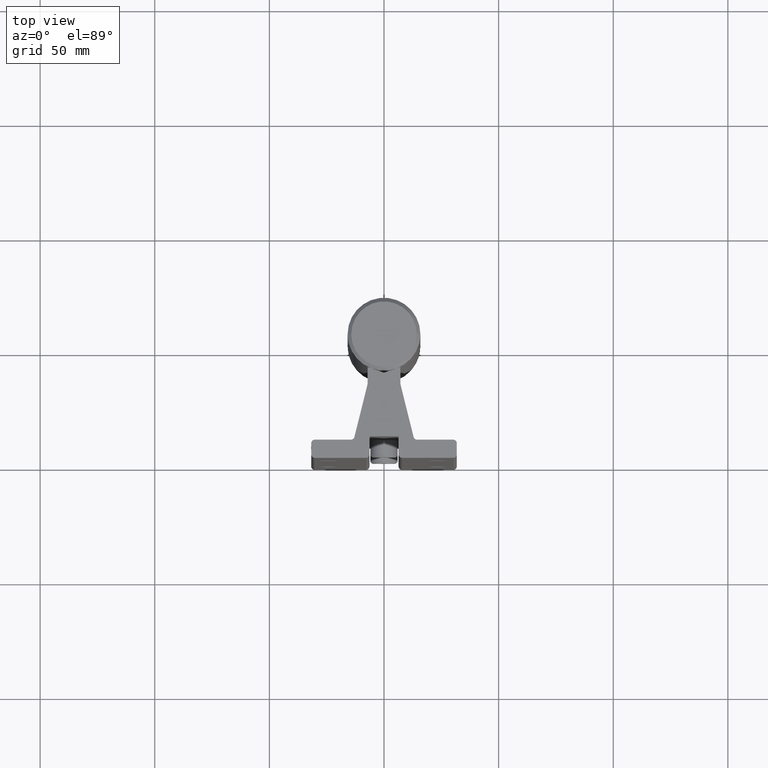
[diagram: clean part render]
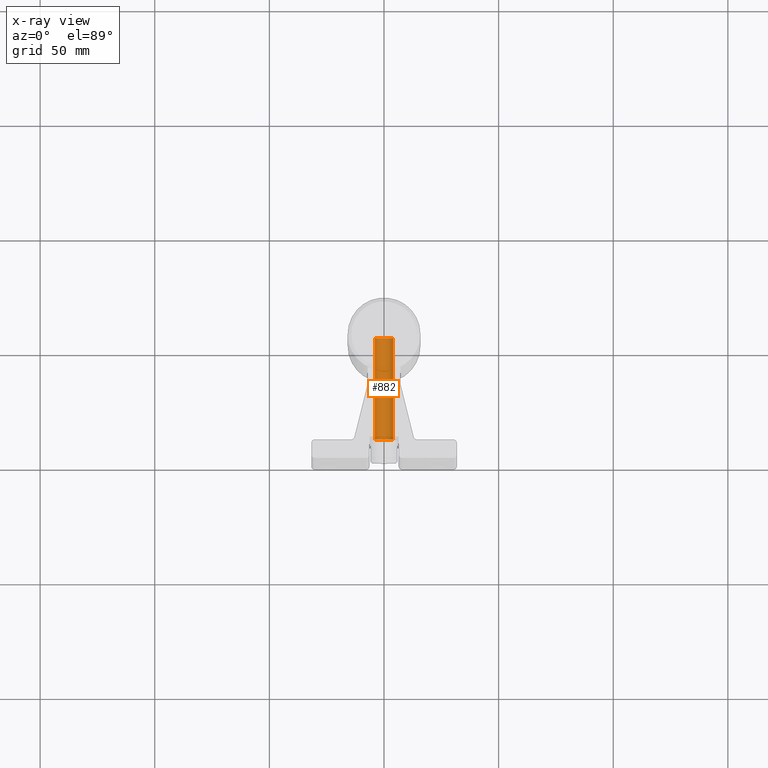
[diagram: x-ray — body ghosted, one internal face saturated and labeled with its STEP entity id]
A machine part, top view, then the same camera in x-ray: the body is ghosted and one INTERNAL B-rep face — a face not visible from any outside direction — is saturated and labeled: STEP entity #882.
In plain terms, the highlighted cylindrical surface (edge-blend (fillet) strip) has radius 3.9688 mm, axis along (0, 1, 0).
Its self-contained STEP definition (entity closure, byte-faithful):
#215 = CARTESIAN_POINT ( 'NONE',  ( 0.1562500000000000000, 0.3679999999999999938, -3.000000000000000444 ) ) ;
#274 = CARTESIAN_POINT ( 'NONE',  ( -0.1562500000000000000, 2.108624999999999972, -3.000000000000000444 ) ) ;
#473 = ORIENTED_EDGE ( 'NONE', *, *, #2626, .T. ) ;
#484 = VERTEX_POINT ( 'NONE', #274 ) ;
#577 = LINE ( 'NONE', #2214, #2398 ) ;
#632 = VERTEX_POINT ( 'NONE', #215 ) ;
#808 = FACE_OUTER_BOUND ( 'NONE', #3010, .T. ) ;
#882 = ADVANCED_FACE ( 'NONE', ( #808 ), #1800, .T. ) ;
#1344 = CIRCLE ( 'NONE', #2404, 0.1562500000000000000 ) ;
#1679 = EDGE_CURVE ( 'NONE', #632, #2872, #1344, .T. ) ;
#1800 = CYLINDRICAL_SURFACE ( 'NONE', #2938, 0.1562500000000000000 ) ;
#1901 = CARTESIAN_POINT ( 'NONE',  ( 0.000000000000000000, 2.108624999999999972, -3.000000000000000444 ) ) ;
#1958 = CARTESIAN_POINT ( 'NONE',  ( 0.000000000000000000, 0.3679999999999999938, -3.000000000000000444 ) ) ;
#2167 = DIRECTION ( 'NONE',  ( 0.000000000000000000, 1.000000000000000000, 0.000000000000000000 ) ) ;
#2214 = CARTESIAN_POINT ( 'NONE',  ( 0.1562500000000000000, 0.3679999999999999938, -3.000000000000000444 ) ) ;
#2293 = ORIENTED_EDGE ( 'NONE', *, *, #2996, .F. ) ;
#2374 = VERTEX_POINT ( 'NONE', #3925 ) ;
#2393 = CIRCLE ( 'NONE', #2875, 0.1562500000000000000 ) ;
#2398 = VECTOR ( 'NONE', #3793, 39.37007874015748143 ) ;
#2404 = AXIS2_PLACEMENT_3D ( 'NONE', #1958, #3250, #3926 ) ;
#2459 = LINE ( 'NONE', #2504, #3395 ) ;
#2504 = CARTESIAN_POINT ( 'NONE',  ( -0.1562500000000000000, 0.3679999999999999938, -3.000000000000000444 ) ) ;
#2626 = EDGE_CURVE ( 'NONE', #484, #2374, #2393, .T. ) ;
#2681 = EDGE_CURVE ( 'NONE', #2872, #484, #2459, .T. ) ;
#2689 = CARTESIAN_POINT ( 'NONE',  ( -0.1562500000000000000, 0.3679999999999999938, -3.000000000000000444 ) ) ;
#2811 = ORIENTED_EDGE ( 'NONE', *, *, #2681, .T. ) ;
#2872 = VERTEX_POINT ( 'NONE', #2689 ) ;
#2875 = AXIS2_PLACEMENT_3D ( 'NONE', #1901, #4064, #3155 ) ;
#2938 = AXIS2_PLACEMENT_3D ( 'NONE', #3084, #3721, #3701 ) ;
#2996 = EDGE_CURVE ( 'NONE', #632, #2374, #577, .T. ) ;
#3010 = EDGE_LOOP ( 'NONE', ( #3718, #2811, #473, #2293 ) ) ;
#3084 = CARTESIAN_POINT ( 'NONE',  ( 0.000000000000000000, 0.3679999999999999938, -3.000000000000000444 ) ) ;
#3155 = DIRECTION ( 'NONE',  ( 1.000000000000000000, 0.000000000000000000, 0.000000000000000000 ) ) ;
#3250 = DIRECTION ( 'NONE',  ( -0.000000000000000000, 1.000000000000000000, -0.000000000000000000 ) ) ;
#3395 = VECTOR ( 'NONE', #2167, 39.37007874015748143 ) ;
#3701 = DIRECTION ( 'NONE',  ( 1.000000000000000000, 0.000000000000000000, 0.000000000000000000 ) ) ;
#3718 = ORIENTED_EDGE ( 'NONE', *, *, #1679, .T. ) ;
#3721 = DIRECTION ( 'NONE',  ( 0.000000000000000000, 1.000000000000000000, 0.000000000000000000 ) ) ;
#3793 = DIRECTION ( 'NONE',  ( 0.000000000000000000, 1.000000000000000000, 0.000000000000000000 ) ) ;
#3925 = CARTESIAN_POINT ( 'NONE',  ( 0.1562500000000000000, 2.108624999999999972, -3.000000000000000444 ) ) ;
#3926 = DIRECTION ( 'NONE',  ( -1.000000000000000000, 0.000000000000000000, 0.000000000000000000 ) ) ;
#4064 = DIRECTION ( 'NONE',  ( -0.000000000000000000, -1.000000000000000000, -0.000000000000000000 ) ) ;